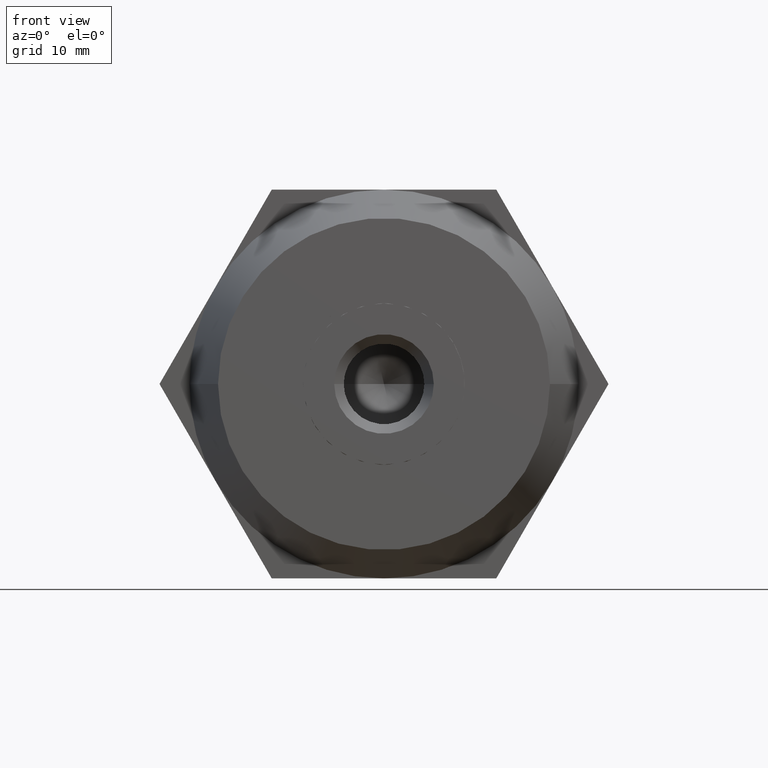
[diagram: clean part render]
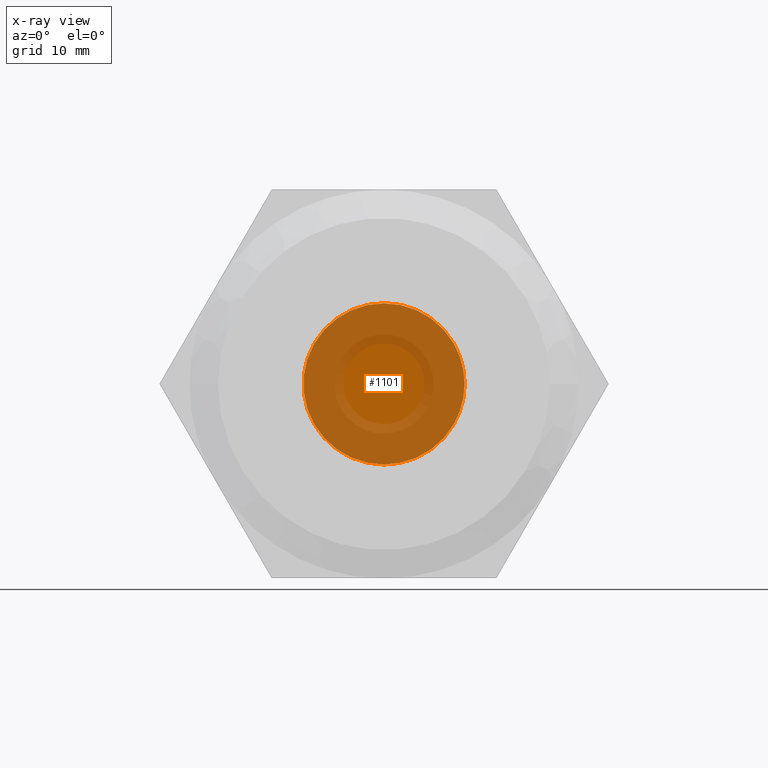
[diagram: x-ray — body ghosted, one internal face saturated and labeled with its STEP entity id]
A machine part, front view, then the same camera in x-ray: the body is ghosted and one INTERNAL B-rep face — a face not visible from any outside direction — is saturated and labeled: STEP entity #1101.
In plain terms, the highlighted planar face has unit normal (0, -1, 0).
Its self-contained STEP definition (entity closure, byte-faithful):
#74 = AXIS2_PLACEMENT_3D ( 'NONE', #3533, #812, #1148 ) ;
#93 = EDGE_CURVE ( 'NONE', #1577, #541, #3525, .T. ) ;
#156 = CARTESIAN_POINT ( 'NONE',  ( 0.0000000000000000000, 0.0000000000000000000, 0.0000000000000000000 ) ) ;
#176 = DIRECTION ( 'NONE',  ( -0.0000000000000000000, -1.000000000000000000, -0.0000000000000000000 ) ) ;
#314 = CIRCLE ( 'NONE', #1660, 8.500000000000000000 ) ;
#345 = DIRECTION ( 'NONE',  ( 1.776356839400250500E-015, 0.0000000000000000000, 1.000000000000000000 ) ) ;
#359 = VERTEX_POINT ( 'NONE', #2143 ) ;
#390 = CARTESIAN_POINT ( 'NONE',  ( 0.0000000000000000000, 0.0000000000000000000, 0.0000000000000000000 ) ) ;
#413 = DIRECTION ( 'NONE',  ( 0.0000000000000000000, 0.0000000000000000000, 1.000000000000000000 ) ) ;
#444 = VERTEX_POINT ( 'NONE', #1242 ) ;
#481 = CIRCLE ( 'NONE', #2408, 8.500000000000000000 ) ;
#541 = VERTEX_POINT ( 'NONE', #1655 ) ;
#583 = CIRCLE ( 'NONE', #1802, 8.500000000000000000 ) ;
#585 = EDGE_CURVE ( 'NONE', #3834, #1099, #592, .T. ) ;
#590 = CARTESIAN_POINT ( 'NONE',  ( -4.250000000000000000, 0.0000000000000000000, 7.361215932167730200 ) ) ;
#592 = CIRCLE ( 'NONE', #3732, 8.500000000000000000 ) ;
#636 = CIRCLE ( 'NONE', #3486, 8.500000000000000000 ) ;
#710 = DIRECTION ( 'NONE',  ( -0.0000000000000000000, -1.000000000000000000, -0.0000000000000000000 ) ) ;
#755 = DIRECTION ( 'NONE',  ( 0.0000000000000000000, 0.0000000000000000000, 1.000000000000000000 ) ) ;
#812 = DIRECTION ( 'NONE',  ( 0.0000000000000000000, 1.000000000000000000, 0.0000000000000000000 ) ) ;
#880 = EDGE_CURVE ( 'NONE', #3969, #444, #314, .T. ) ;
#883 = FACE_OUTER_BOUND ( 'NONE', #3718, .T. ) ;
#1085 = DIRECTION ( 'NONE',  ( -0.0000000000000000000, -1.000000000000000000, -0.0000000000000000000 ) ) ;
#1099 = VERTEX_POINT ( 'NONE', #1428 ) ;
#1101 = ADVANCED_FACE ( 'NONE', ( #883 ), #2645, .F. ) ;
#1143 = DIRECTION ( 'NONE',  ( 0.0000000000000000000, 0.0000000000000000000, 1.000000000000000000 ) ) ;
#1148 = DIRECTION ( 'NONE',  ( 0.0000000000000000000, 0.0000000000000000000, 1.000000000000000000 ) ) ;
#1149 = DIRECTION ( 'NONE',  ( 0.0000000000000000000, 0.0000000000000000000, 1.000000000000000000 ) ) ;
#1157 = DIRECTION ( 'NONE',  ( -0.0000000000000000000, -1.000000000000000000, -0.0000000000000000000 ) ) ;
#1158 = ORIENTED_EDGE ( 'NONE', *, *, #2357, .T. ) ;
#1219 = ORIENTED_EDGE ( 'NONE', *, *, #585, .T. ) ;
#1242 = CARTESIAN_POINT ( 'NONE',  ( 4.250000000000060400, -1.029646391571440000E-012, -7.361215932167689300 ) ) ;
#1267 = ORIENTED_EDGE ( 'NONE', *, *, #2575, .T. ) ;
#1428 = CARTESIAN_POINT ( 'NONE',  ( 4.249999999999935200, -1.027613577535106000E-012, 7.361215932167770100 ) ) ;
#1521 = CARTESIAN_POINT ( 'NONE',  ( 0.0000000000000000000, 0.0000000000000000000, 0.0000000000000000000 ) ) ;
#1533 = DIRECTION ( 'NONE',  ( -0.0000000000000000000, -1.000000000000000000, -0.0000000000000000000 ) ) ;
#1562 = AXIS2_PLACEMENT_3D ( 'NONE', #3254, #1157, #1143 ) ;
#1574 = EDGE_CURVE ( 'NONE', #444, #3834, #636, .T. ) ;
#1577 = VERTEX_POINT ( 'NONE', #590 ) ;
#1655 = CARTESIAN_POINT ( 'NONE',  ( -8.500000000000000000, 3.369912891163295000E-016, -9.427984902029200000E-019 ) ) ;
#1660 = AXIS2_PLACEMENT_3D ( 'NONE', #2166, #2816, #345 ) ;
#1716 = CARTESIAN_POINT ( 'NONE',  ( 0.0000000000000000000, 0.0000000000000000000, 0.0000000000000000000 ) ) ;
#1802 = AXIS2_PLACEMENT_3D ( 'NONE', #1978, #176, #2904 ) ;
#1916 = CARTESIAN_POINT ( 'NONE',  ( -4.249999999999935200, -1.030108968676816100E-012, -7.361215932167759500 ) ) ;
#1978 = CARTESIAN_POINT ( 'NONE',  ( 0.0000000000000000000, 0.0000000000000000000, 0.0000000000000000000 ) ) ;
#2143 = CARTESIAN_POINT ( 'NONE',  ( 0.0000000000000000000, 0.0000000000000000000, 8.500000000000000000 ) ) ;
#2166 = CARTESIAN_POINT ( 'NONE',  ( 0.0000000000000000000, 0.0000000000000000000, 0.0000000000000000000 ) ) ;
#2244 = ORIENTED_EDGE ( 'NONE', *, *, #880, .T. ) ;
#2357 = EDGE_CURVE ( 'NONE', #1099, #359, #583, .T. ) ;
#2408 = AXIS2_PLACEMENT_3D ( 'NONE', #1716, #2962, #1149 ) ;
#2513 = EDGE_CURVE ( 'NONE', #541, #3969, #481, .T. ) ;
#2575 = EDGE_CURVE ( 'NONE', #359, #1577, #2827, .T. ) ;
#2645 = PLANE ( 'NONE',  #74 ) ;
#2693 = ORIENTED_EDGE ( 'NONE', *, *, #1574, .T. ) ;
#2816 = DIRECTION ( 'NONE',  ( -0.0000000000000000000, -1.000000000000000000, -0.0000000000000000000 ) ) ;
#2824 = ORIENTED_EDGE ( 'NONE', *, *, #2513, .T. ) ;
#2827 = CIRCLE ( 'NONE', #2885, 8.500000000000000000 ) ;
#2885 = AXIS2_PLACEMENT_3D ( 'NONE', #390, #710, #413 ) ;
#2904 = DIRECTION ( 'NONE',  ( 5.329070518200752200E-015, 0.0000000000000000000, 1.000000000000000000 ) ) ;
#2962 = DIRECTION ( 'NONE',  ( -0.0000000000000000000, -1.000000000000000000, -0.0000000000000000000 ) ) ;
#3254 = CARTESIAN_POINT ( 'NONE',  ( 0.0000000000000000000, 0.0000000000000000000, 0.0000000000000000000 ) ) ;
#3396 = ORIENTED_EDGE ( 'NONE', *, *, #93, .T. ) ;
#3421 = CARTESIAN_POINT ( 'NONE',  ( 8.500000000000000000, -1.408287334695053900E-015, -2.603028012455415100E-015 ) ) ;
#3486 = AXIS2_PLACEMENT_3D ( 'NONE', #1521, #1533, #3682 ) ;
#3525 = CIRCLE ( 'NONE', #1562, 8.500000000000000000 ) ;
#3533 = CARTESIAN_POINT ( 'NONE',  ( 0.0000000000000000000, 0.0000000000000000000, 0.0000000000000000000 ) ) ;
#3682 = DIRECTION ( 'NONE',  ( -1.776356839400250500E-015, 0.0000000000000000000, 1.000000000000000000 ) ) ;
#3718 = EDGE_LOOP ( 'NONE', ( #1158, #1267, #3396, #2824, #2244, #2693, #1219 ) ) ;
#3732 = AXIS2_PLACEMENT_3D ( 'NONE', #156, #1085, #755 ) ;
#3834 = VERTEX_POINT ( 'NONE', #3421 ) ;
#3969 = VERTEX_POINT ( 'NONE', #1916 ) ;